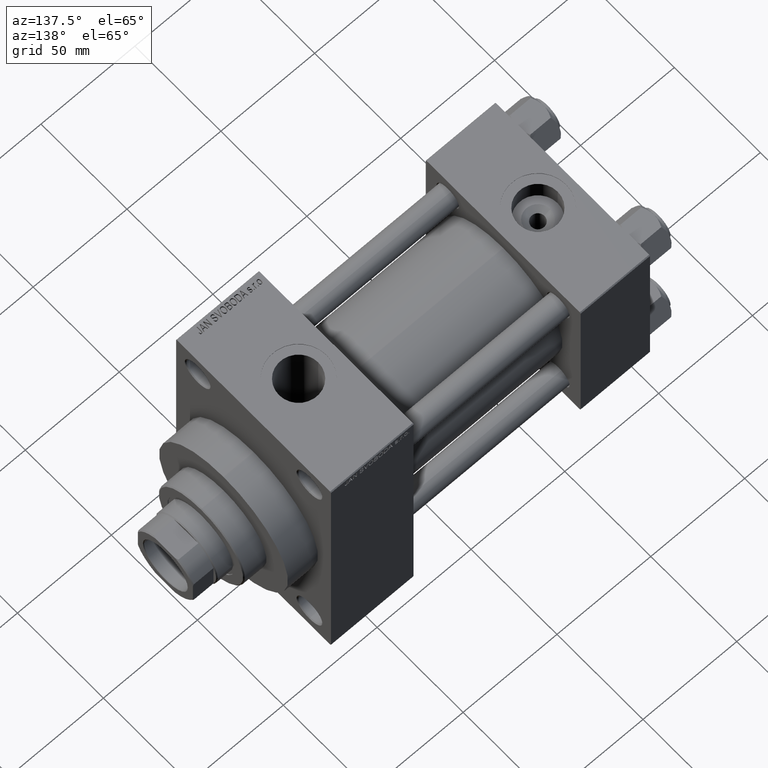
[diagram: clean part render]
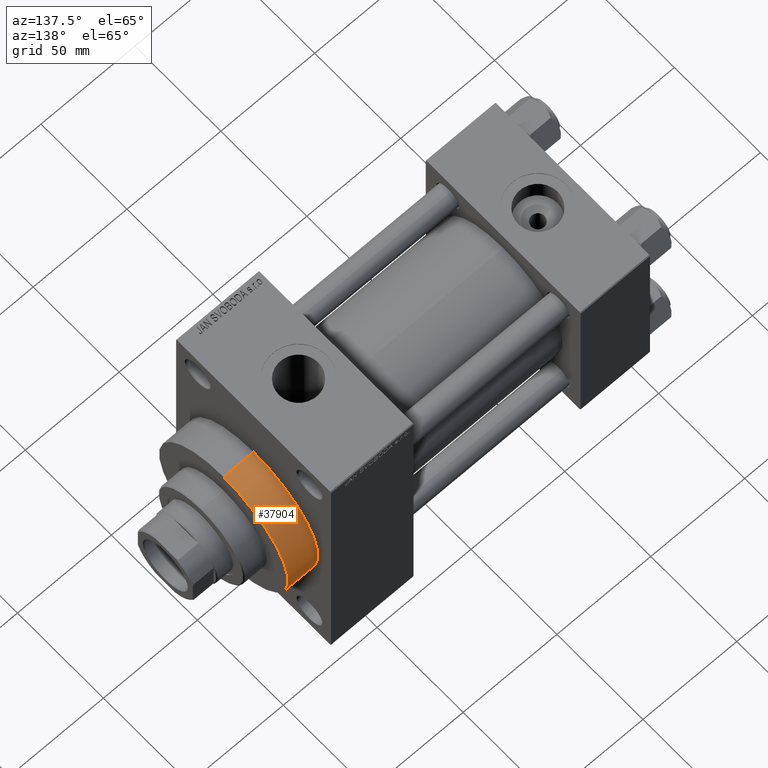
[diagram: same view with one face highlighted and labeled with its STEP entity id]
A machine part, auxiliary view. The second image highlights one B-rep face of the part: STEP entity #37904.
In plain terms, the highlighted cylindrical surface (partial cylindrical patch) has radius 37.5 mm, axis along (-1, -0, -0).
Its self-contained STEP definition (entity closure, byte-faithful):
#200 = CIRCLE ( 'NONE', #3243, 37.50000000000000711 ) ;
#726 = EDGE_CURVE ( 'NONE', #21761, #43323, #16509, .T. ) ;
#1767 = LINE ( 'NONE', #13233, #26861 ) ;
#3243 = AXIS2_PLACEMENT_3D ( 'NONE', #27506, #9371, #46333 ) ;
#3764 = VECTOR ( 'NONE', #12930, 1000.000000000000000 ) ;
#3810 = AXIS2_PLACEMENT_3D ( 'NONE', #15684, #16625, #4706 ) ;
#4706 = DIRECTION ( 'NONE',  ( 0.000000000000000000, 0.000000000000000000, 1.000000000000000000 ) ) ;
#8785 = ORIENTED_EDGE ( 'NONE', *, *, #44722, .T. ) ;
#9371 = DIRECTION ( 'NONE',  ( 1.000000000000000000, 0.000000000000000000, 0.000000000000000000 ) ) ;
#10071 = CARTESIAN_POINT ( 'NONE',  ( 186.0000000000000000, 4.592425496802575156E-15, -37.50000000000000711 ) ) ;
#12341 = CARTESIAN_POINT ( 'NONE',  ( 169.9999999999999716, 4.592425496802575156E-15, -37.50000000000000711 ) ) ;
#12930 = DIRECTION ( 'NONE',  ( -1.000000000000000000, -0.000000000000000000, -0.000000000000000000 ) ) ;
#13233 = CARTESIAN_POINT ( 'NONE',  ( 186.0000000000000000, 0.000000000000000000, 37.50000000000000711 ) ) ;
#15684 = CARTESIAN_POINT ( 'NONE',  ( 186.0000000000000000, 0.000000000000000000, 0.000000000000000000 ) ) ;
#16509 = LINE ( 'NONE', #10071, #3764 ) ;
#16625 = DIRECTION ( 'NONE',  ( -1.000000000000000000, -0.000000000000000000, -0.000000000000000000 ) ) ;
#16637 = CARTESIAN_POINT ( 'NONE',  ( 169.9999999999999716, 0.000000000000000000, 0.000000000000000000 ) ) ;
#17272 = CARTESIAN_POINT ( 'NONE',  ( 186.0000000000000000, 4.592425496802575156E-15, -37.50000000000000711 ) ) ;
#18341 = EDGE_CURVE ( 'NONE', #21761, #26636, #200, .T. ) ;
#18818 = ORIENTED_EDGE ( 'NONE', *, *, #726, .T. ) ;
#19491 = CYLINDRICAL_SURFACE ( 'NONE', #3810, 37.50000000000000711 ) ;
#21761 = VERTEX_POINT ( 'NONE', #17272 ) ;
#22996 = CIRCLE ( 'NONE', #38232, 37.50000000000000711 ) ;
#23922 = VERTEX_POINT ( 'NONE', #27897 ) ;
#26636 = VERTEX_POINT ( 'NONE', #33714 ) ;
#26861 = VECTOR ( 'NONE', #38528, 1000.000000000000000 ) ;
#27506 = CARTESIAN_POINT ( 'NONE',  ( 186.0000000000000000, 0.000000000000000000, 0.000000000000000000 ) ) ;
#27897 = CARTESIAN_POINT ( 'NONE',  ( 169.9999999999999716, 0.000000000000000000, 37.50000000000000711 ) ) ;
#28645 = EDGE_LOOP ( 'NONE', ( #33739, #18818, #8785, #42164 ) ) ;
#31191 = DIRECTION ( 'NONE',  ( 1.000000000000000000, 0.000000000000000000, 0.000000000000000000 ) ) ;
#32140 = DIRECTION ( 'NONE',  ( 0.000000000000000000, 0.000000000000000000, -1.000000000000000000 ) ) ;
#33714 = CARTESIAN_POINT ( 'NONE',  ( 186.0000000000000000, 0.000000000000000000, 37.50000000000000711 ) ) ;
#33739 = ORIENTED_EDGE ( 'NONE', *, *, #18341, .F. ) ;
#37400 = FACE_OUTER_BOUND ( 'NONE', #28645, .T. ) ;
#37904 = ADVANCED_FACE ( 'NONE', ( #37400 ), #19491, .T. ) ;
#38232 = AXIS2_PLACEMENT_3D ( 'NONE', #16637, #31191, #32140 ) ;
#38528 = DIRECTION ( 'NONE',  ( -1.000000000000000000, -0.000000000000000000, -0.000000000000000000 ) ) ;
#42164 = ORIENTED_EDGE ( 'NONE', *, *, #46483, .F. ) ;
#43323 = VERTEX_POINT ( 'NONE', #12341 ) ;
#44722 = EDGE_CURVE ( 'NONE', #43323, #23922, #22996, .T. ) ;
#46333 = DIRECTION ( 'NONE',  ( 0.000000000000000000, 0.000000000000000000, -1.000000000000000000 ) ) ;
#46483 = EDGE_CURVE ( 'NONE', #26636, #23922, #1767, .T. ) ;